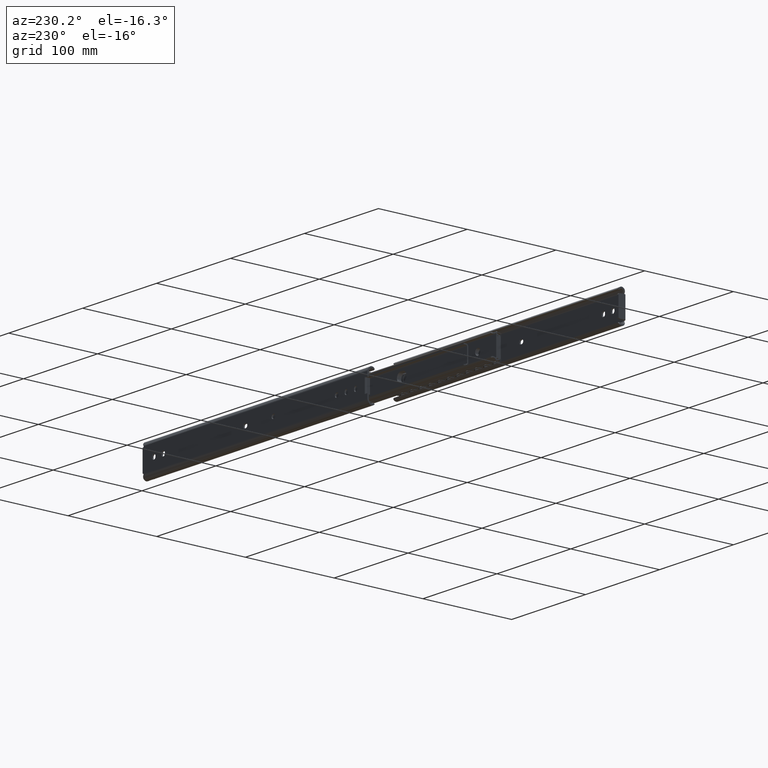
[diagram: clean part render]
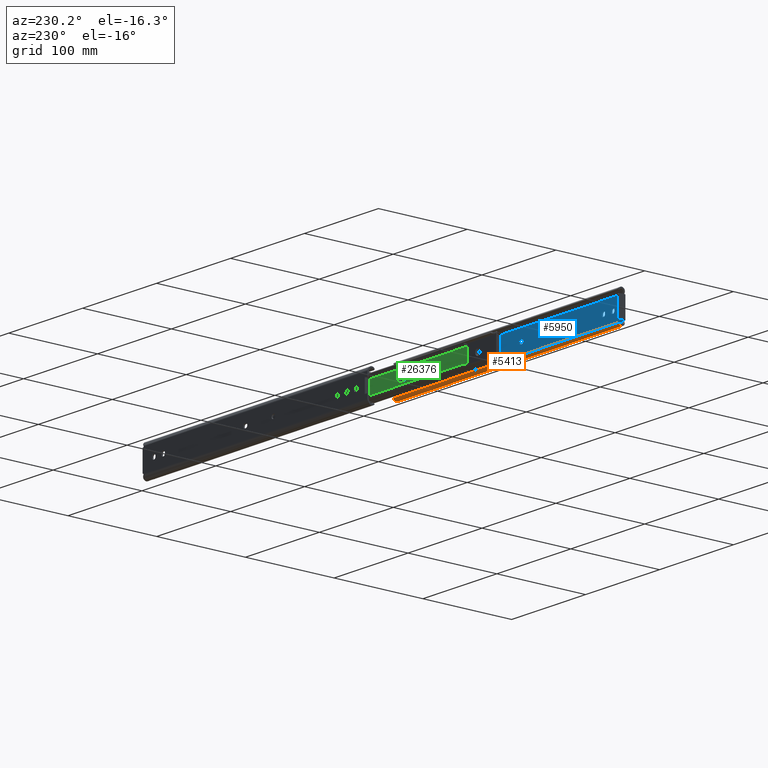
[diagram: same view with three faces highlighted in distinct colors, each labeled with its STEP entity id]
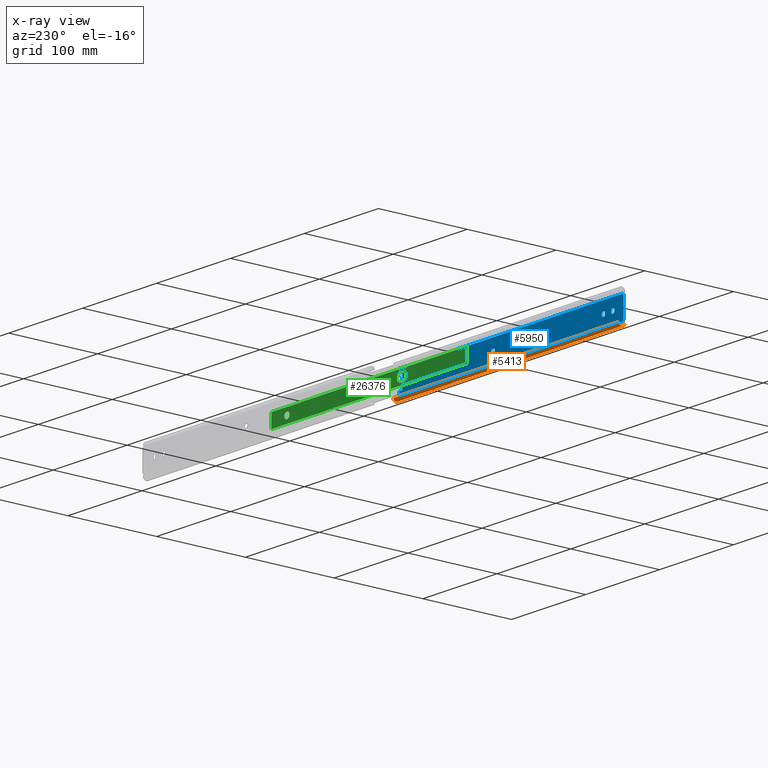
[diagram: x-ray of the same camera — body ghosted, the three highlighted faces saturated]
A machine part, auxiliary view with three faces highlighted in distinct colors.
The next image is the same camera in x-ray (body ghosted, the three faces saturated) — at least one of them is partly hidden behind the body in this view.
Their STEP definitions:

[orange] entity #5413 — the highlighted face is a freeform B-spline surface patch.
#3963=CARTESIAN_POINT('',(-630.399999999999980,-10.400000000000000,-15.138563000000000));
#3964=VERTEX_POINT('',#3963);
#3970=CARTESIAN_POINT('',(-632.0,-11.302638518556201,-16.501614328666950));
#3971=VERTEX_POINT('',#3970);
#3972=CARTESIAN_POINT('',(-632.0,-11.302638518556201,-16.501614328666950));
#3973=CARTESIAN_POINT('',(-632.000000000000230,-11.226194378668000,-16.426128224287918));
#3974=CARTESIAN_POINT('',(-631.990997167615550,-11.153967461245450,-16.348703276690522));
#3975=CARTESIAN_POINT('',(-631.963169050456940,-11.051633304871880,-16.230104814364751));
#3976=CARTESIAN_POINT('',(-631.951493122542390,-11.018525127647960,-16.190162409486451));
#3977=CARTESIAN_POINT('',(-631.923026400910430,-10.954286012375601,-16.109547295088930));
#3978=CARTESIAN_POINT('',(-631.906181411616220,-10.923146480550781,-16.068838561062211));
#3979=CARTESIAN_POINT('',(-631.848901241949190,-10.834730384179190,-15.948717804249480));
#3980=CARTESIAN_POINT('',(-631.801481476455480,-10.781641194929939,-15.870322937539759));
#3981=CARTESIAN_POINT('',(-631.715997520898440,-10.709667376940240,-15.756336050086171));
#3982=CARTESIAN_POINT('',(-631.684895276481830,-10.686836357171909,-15.718734330919769));
#3983=CARTESIAN_POINT('',(-631.618681467106280,-10.644274570757061,-15.646143124146970));
#3984=CARTESIAN_POINT('',(-631.583679256986670,-10.624571911342420,-15.611224698661211));
#3985=CARTESIAN_POINT('',(-631.473109611603380,-10.569668153573760,-15.510742340941650));
#3986=CARTESIAN_POINT('',(-631.391907230752390,-10.538598879034121,-15.449330065202069));
#3987=CARTESIAN_POINT('',(-631.214682063339180,-10.485921557493890,-15.339821609604050));
#3988=CARTESIAN_POINT('',(-631.121416271148520,-10.465089665039910,-15.293401310451010));
#3989=CARTESIAN_POINT('',(-630.974798504474050,-10.440343941462750,-15.236454519679439));
#3990=CARTESIAN_POINT('',(-630.924797603850950,-10.433193577023260,-15.219599340662899));
#3991=CARTESIAN_POINT('',(-630.822479874299350,-10.420955952402750,-15.190340587792001));
#3992=CARTESIAN_POINT('',(-630.770336387127830,-10.415901287041491,-15.178014943015469));
#3993=CARTESIAN_POINT('',(-630.613514909318270,-10.403920714509960,-15.148547015818920));
#3994=CARTESIAN_POINT('',(-630.507505410241720,-10.399999847407241,-15.138563060668821));
#3995=CARTESIAN_POINT('',(-630.399999999999980,-10.400000000000000,-15.138563000000000));
#3996=B_SPLINE_CURVE_WITH_KNOTS('',3,(#3972,#3973,#3974,#3975,#3976,#3977,#3978,#3979,#3980,#3981,#3982,#3983,#3984,#3985,#3986,#3987,#3988,#3989,#3990,#3991,#3992,#3993,#3994,#3995),.UNSPECIFIED.,.F.,.U.,(4,2,2,2,2,2,2,2,2,2,2,4),(0.0,0.124999999999944,0.187499999999904,0.249999999999865,0.374999999999787,0.437499999999748,0.499999999999708,0.624999999999721,0.749999999999733,0.812499999999800,0.874999999999866,1.0),.UNSPECIFIED.);
#3997=EDGE_CURVE('',#3971,#3964,#3996,.T.);
#4055=CARTESIAN_POINT('',(-327.0,-11.302638518556201,-16.501614328666950));
#4056=VERTEX_POINT('',#4055);
#4062=CARTESIAN_POINT('',(-328.600000000000020,-10.400000000000000,-15.138563000000000));
#4063=VERTEX_POINT('',#4062);
#4064=CARTESIAN_POINT('',(-328.600000000000020,-10.400000000000000,-15.138563000000000));
#4065=CARTESIAN_POINT('',(-328.492489346427190,-10.400000000000000,-15.138563000000000));
#4066=CARTESIAN_POINT('',(-328.386802597449500,-10.403921634057779,-15.148546628419540));
#4067=CARTESIAN_POINT('',(-328.230898281170820,-10.415794543107490,-15.177753697955920));
#4068=CARTESIAN_POINT('',(-328.179371178589180,-10.420764655172690,-15.189876962639850));
#4069=CARTESIAN_POINT('',(-328.077220936446510,-10.432923174149069,-15.218958860896990));
#4070=CARTESIAN_POINT('',(-328.026542471616610,-10.440137817474209,-15.235973860708571));
#4071=CARTESIAN_POINT('',(-327.879285968175220,-10.464931427625180,-15.293049567586900));
#4072=CARTESIAN_POINT('',(-327.786269993977730,-10.485727776225101,-15.339377883525030));
#4073=CARTESIAN_POINT('',(-327.654471023954610,-10.524770371689071,-15.420602472359590));
#4074=CARTESIAN_POINT('',(-327.611609034011510,-10.539195613233330,-15.449821699886179));
#4075=CARTESIAN_POINT('',(-327.529773989184380,-10.570629313260380,-15.511326141312860));
#4076=CARTESIAN_POINT('',(-327.490915097730520,-10.587569182211251,-15.543485633997850));
#4077=CARTESIAN_POINT('',(-327.380335841868880,-10.642366928866631,-15.643828389948540));
#4078=CARTESIAN_POINT('',(-327.314560355011910,-10.684161304594300,-15.715845930874400));
#4079=CARTESIAN_POINT('',(-327.228090507058990,-10.756635705755080,-15.830767068307020));
#4080=CARTESIAN_POINT('',(-327.201657300693510,-10.782170356377421,-15.869798196113280));
#4081=CARTESIAN_POINT('',(-327.153883464229520,-10.835615059043061,-15.948310848709189));
#4082=CARTESIAN_POINT('',(-327.111017979923020,-10.891588240765049,-16.027518397095630));
#4083=CARTESIAN_POINT('',(-327.077677865162400,-10.952901366475251,-16.107761194241821));
#4084=CARTESIAN_POINT('',(-327.049067677373390,-11.017063850306970,-16.188374994257320));
#4085=CARTESIAN_POINT('',(-327.037150048001480,-11.050613894492940,-16.228898804542411));
#4086=CARTESIAN_POINT('',(-327.009006493842890,-11.153651154112900,-16.348385027066239));
#4087=CARTESIAN_POINT('',(-327.0,-11.226162783748080,-16.426097025331060));
#4088=CARTESIAN_POINT('',(-327.0,-11.302638518556201,-16.501614328666950));
#4089=B_SPLINE_CURVE_WITH_KNOTS('',3,(#4064,#4065,#4066,#4067,#4068,#4069,#4070,#4071,#4072,#4073,#4074,#4075,#4076,#4077,#4078,#4079,#4080,#4081,#4082,#4083,#4084,#4085,#4086,#4087,#4088),.UNSPECIFIED.,.F.,.U.,(4,2,2,2,2,2,2,2,2,1,2,2,4),(0.0,0.124999999999974,0.187499999999928,0.249999999999883,0.374999999999854,0.437499999999839,0.499999999999824,0.624999999999840,0.687499999999867,0.749999999999894,0.812499999999921,0.874999999999948,1.0),.UNSPECIFIED.);
#4090=EDGE_CURVE('',#4063,#4056,#4089,.T.);
#4811=CARTESIAN_POINT('',(-632.0,-17.215175400253099,-16.147869559069100));
#4812=VERTEX_POINT('',#4811);
#4818=CARTESIAN_POINT('',(-631.997873348267940,-17.279057753178549,-16.065402533108699));
#4819=VERTEX_POINT('',#4818);
#4820=CARTESIAN_POINT('',(-632.0,-17.215175400253081,-16.147869559069090));
#4821=CARTESIAN_POINT('',(-632.0,-17.236756543974710,-16.120751444581629));
#4822=CARTESIAN_POINT('',(-631.999311394536220,-17.258051624621189,-16.093266270105200));
#4823=CARTESIAN_POINT('',(-631.997873348267940,-17.279057753178549,-16.065402533108699));
#4824=QUASI_UNIFORM_CURVE('',3,(#4820,#4821,#4822,#4823),.UNSPECIFIED.,.F.,.U.);
#4825=EDGE_CURVE('',#4812,#4819,#4824,.T.);
#5238=CARTESIAN_POINT('',(-632.0,-11.302638518556190,-16.501614328666960));
#5239=CARTESIAN_POINT('',(-632.0,-12.565766176203734,-17.748911850081434));
#5240=CARTESIAN_POINT('',(-632.0,-14.337771449614360,-17.642893467496911));
#5241=CARTESIAN_POINT('',(-632.0,-16.109776723024979,-17.536875084912385));
#5242=CARTESIAN_POINT('',(-632.0,-17.215175400253091,-16.147869559069090));
#5250=(BOUNDED_CURVE()B_SPLINE_CURVE(2,(#5238,#5239,#5240,#5241,#5242),.UNSPECIFIED.,.F.,.U.)B_SPLINE_CURVE_WITH_KNOTS((3,2,3),(0.0,0.500000000000000,1.0),.UNSPECIFIED.)CURVE()GEOMETRIC_REPRESENTATION_ITEM()RATIONAL_B_SPLINE_CURVE((1.0,0.913323076196492,1.0,0.913323076196492,1.0))REPRESENTATION_ITEM(''));
#5251=EDGE_CURVE('',#3971,#4812,#5250,.T.);
#5349=CARTESIAN_POINT('',(-327.0,-17.279057753178549,-16.065402533108699));
#5350=VERTEX_POINT('',#5349);
#5351=CARTESIAN_POINT('',(-327.0,-17.279057753178549,-16.065402533108699));
#5352=CARTESIAN_POINT('',(-631.997873348267940,-17.279057753178549,-16.065402533108699));
#5353=QUASI_UNIFORM_CURVE('',1,(#5351,#5352),.UNSPECIFIED.,.F.,.U.);
#5354=EDGE_CURVE('',#5350,#4819,#5353,.T.);
#5372=CARTESIAN_POINT('',(-319.374999999999890,-17.355711113712001,-15.960189876268430));
#5373=CARTESIAN_POINT('',(-639.815625000000180,-17.355711113712001,-15.960189876268430));
#5374=CARTESIAN_POINT('',(-319.374999999999890,-12.858507139814172,-22.349882710929190));
#5375=CARTESIAN_POINT('',(-639.815625000000300,-12.858507139814172,-22.349882710929190));
#5376=CARTESIAN_POINT('',(-319.374999999999890,-10.332527220146030,-14.955801053982810));
#5377=CARTESIAN_POINT('',(-639.815625000000180,-10.332527220146030,-14.955801053982810));
#5385=(BOUNDED_SURFACE()B_SPLINE_SURFACE(1,2,((#5372,#5374,#5376),(#5373,#5375,#5377)),.UNSPECIFIED.,.F.,.F.,.U.)B_SPLINE_SURFACE_WITH_KNOTS((2,2),(3,3),(0.0,320.440625000000180),(0.0,9.758852551128406),.UNSPECIFIED.)GEOMETRIC_REPRESENTATION_ITEM()RATIONAL_B_SPLINE_SURFACE(((1.0,0.453990499739547,1.0),(1.0,0.453990499739547,1.0)))REPRESENTATION_ITEM('')SURFACE());
#5386=CARTESIAN_POINT('',(-328.600000000000020,-10.400000000000000,-15.138563000000000));
#5387=CARTESIAN_POINT('',(-630.399999999999980,-10.400000000000000,-15.138563000000000));
#5388=QUASI_UNIFORM_CURVE('',1,(#5386,#5387),.UNSPECIFIED.,.F.,.U.);
#5389=EDGE_CURVE('',#4063,#3964,#5388,.T.);
#5390=ORIENTED_EDGE('',*,*,#5389,.F.);
#5391=ORIENTED_EDGE('',*,*,#4090,.T.);
#5392=CARTESIAN_POINT('',(-327.0,-11.302638518556190,-16.501614328666960));
#5393=CARTESIAN_POINT('',(-327.000000000000060,-12.588078055756213,-17.770944106200130));
#5394=CARTESIAN_POINT('',(-327.0,-14.389815792547820,-17.639437392491381));
#5395=CARTESIAN_POINT('',(-327.000000000000060,-16.191553529339423,-17.507930678782625));
#5396=CARTESIAN_POINT('',(-327.0,-17.279057753178542,-16.065402533108688));
#5404=(BOUNDED_CURVE()B_SPLINE_CURVE(2,(#5392,#5393,#5394,#5395,#5396),.UNSPECIFIED.,.F.,.U.)B_SPLINE_CURVE_WITH_KNOTS((3,2,3),(0.0,0.500000000000000,1.0),.UNSPECIFIED.)CURVE()GEOMETRIC_REPRESENTATION_ITEM()RATIONAL_B_SPLINE_CURVE((1.0,0.910635851455390,1.0,0.910635851455390,1.0))REPRESENTATION_ITEM(''));
#5405=EDGE_CURVE('',#4056,#5350,#5404,.T.);
#5406=ORIENTED_EDGE('',*,*,#5405,.T.);
#5407=ORIENTED_EDGE('',*,*,#5354,.T.);
#5408=ORIENTED_EDGE('',*,*,#4825,.F.);
#5409=ORIENTED_EDGE('',*,*,#5251,.F.);
#5410=ORIENTED_EDGE('',*,*,#3997,.T.);
#5411=EDGE_LOOP('',(#5390,#5391,#5406,#5407,#5408,#5409,#5410));
#5412=FACE_OUTER_BOUND('',#5411,.T.);
#5413=ADVANCED_FACE('',(#5412),#5385,.T.);

[blue] entity #5950 — the highlighted face is a freeform B-spline surface patch.
#2589=CARTESIAN_POINT('',(-368.700000000000100,-17.500000000000000,2.250000000000000));
#2590=VERTEX_POINT('',#2589);
#2596=CARTESIAN_POINT('',(-367.899999999999980,-17.500000000000000,2.250000000000000));
#2597=VERTEX_POINT('',#2596);
#2598=CARTESIAN_POINT('',(-367.899999999999980,-17.500000000000000,2.250000000000000));
#2599=CARTESIAN_POINT('',(-368.700000000000100,-17.500000000000000,2.250000000000000));
#2600=QUASI_UNIFORM_CURVE('',1,(#2598,#2599),.UNSPECIFIED.,.F.,.U.);
#2601=EDGE_CURVE('',#2597,#2590,#2600,.T.);
#2646=CARTESIAN_POINT('',(-368.700000000000100,-17.500000000000000,-2.250000000000000));
#2647=VERTEX_POINT('',#2646);
#2653=CARTESIAN_POINT('',(-368.700000000000100,-17.500000000000000,-2.249999999999999));
#2654=CARTESIAN_POINT('',(-370.950000000000050,-17.500000000000000,-2.249999999999999));
#2655=CARTESIAN_POINT('',(-370.949999999999990,-17.500000000000000,9.735621E-016));
#2656=CARTESIAN_POINT('',(-370.950000000000050,-17.500000000000000,2.250000000000000));
#2657=CARTESIAN_POINT('',(-368.700000000000100,-17.500000000000000,2.250000000000001));
#2665=(BOUNDED_CURVE()B_SPLINE_CURVE(2,(#2653,#2654,#2655,#2656,#2657),.UNSPECIFIED.,.F.,.U.)B_SPLINE_CURVE_WITH_KNOTS((3,2,3),(0.0,0.500000000000000,1.0),.UNSPECIFIED.)CURVE()GEOMETRIC_REPRESENTATION_ITEM()RATIONAL_B_SPLINE_CURVE((1.0,0.707106781186547,1.0,0.707106781186547,1.0))REPRESENTATION_ITEM(''));
#2666=EDGE_CURVE('',#2647,#2590,#2665,.T.);
#2684=CARTESIAN_POINT('',(-367.899999999999980,-17.500000000000000,-2.250000000000000));
#2685=VERTEX_POINT('',#2684);
#2691=CARTESIAN_POINT('',(-368.700000000000100,-17.500000000000000,-2.250000000000000));
#2692=CARTESIAN_POINT('',(-367.899999999999980,-17.500000000000000,-2.250000000000000));
#2693=QUASI_UNIFORM_CURVE('',1,(#2691,#2692),.UNSPECIFIED.,.F.,.U.);
#2694=EDGE_CURVE('',#2647,#2685,#2693,.T.);
#2734=CARTESIAN_POINT('',(-367.899999999999980,-17.500000000000000,2.250000000000001));
#2735=CARTESIAN_POINT('',(-365.650000000000090,-17.500000000000000,2.250000000000000));
#2736=CARTESIAN_POINT('',(-365.649999999999980,-17.500000000000000,9.735621E-016));
#2737=CARTESIAN_POINT('',(-365.650000000000090,-17.500000000000000,-2.249999999999999));
#2738=CARTESIAN_POINT('',(-367.899999999999980,-17.500000000000000,-2.249999999999999));
#2746=(BOUNDED_CURVE()B_SPLINE_CURVE(2,(#2734,#2735,#2736,#2737,#2738),.UNSPECIFIED.,.F.,.U.)B_SPLINE_CURVE_WITH_KNOTS((3,2,3),(0.0,0.500000000000000,1.0),.UNSPECIFIED.)CURVE()GEOMETRIC_REPRESENTATION_ITEM()RATIONAL_B_SPLINE_CURVE((1.0,0.707106781186547,1.0,0.707106781186547,1.0))REPRESENTATION_ITEM(''));
#2747=EDGE_CURVE('',#2597,#2685,#2746,.T.);
#2790=CARTESIAN_POINT('',(-353.350000000000020,-17.500000000000000,-0.400000000000204));
#2791=VERTEX_POINT('',#2790);
#2797=CARTESIAN_POINT('',(-357.850000000000020,-17.500000000000000,-0.400000000000204));
#2798=VERTEX_POINT('',#2797);
#2799=CARTESIAN_POINT('',(-353.350000000000080,-17.500000000000000,-0.400000000000204));
#2800=CARTESIAN_POINT('',(-353.350000000000080,-17.500000000000000,-2.650000000000204));
#2801=CARTESIAN_POINT('',(-355.600000000000020,-17.500000000000000,-2.650000000000203));
#2802=CARTESIAN_POINT('',(-357.849999999999970,-17.500000000000000,-2.650000000000204));
#2803=CARTESIAN_POINT('',(-357.850000000000020,-17.500000000000000,-0.400000000000204));
#2811=(BOUNDED_CURVE()B_SPLINE_CURVE(2,(#2799,#2800,#2801,#2802,#2803),.UNSPECIFIED.,.F.,.U.)B_SPLINE_CURVE_WITH_KNOTS((3,2,3),(0.0,0.500000000000000,1.0),.UNSPECIFIED.)CURVE()GEOMETRIC_REPRESENTATION_ITEM()RATIONAL_B_SPLINE_CURVE((1.0,0.707106781186547,1.0,0.707106781186547,1.0))REPRESENTATION_ITEM(''));
#2812=EDGE_CURVE('',#2791,#2798,#2811,.T.);
#2835=CARTESIAN_POINT('',(-357.850000000000020,-17.500000000000000,0.399999999999808));
#2836=VERTEX_POINT('',#2835);
#2837=CARTESIAN_POINT('',(-357.850000000000020,-17.500000000000000,0.399999999999808));
#2838=CARTESIAN_POINT('',(-357.850000000000020,-17.500000000000000,-0.400000000000204));
#2839=QUASI_UNIFORM_CURVE('',1,(#2837,#2838),.UNSPECIFIED.,.F.,.U.);
#2840=EDGE_CURVE('',#2836,#2798,#2839,.T.);
#2886=CARTESIAN_POINT('',(-353.350000000000020,-17.500000000000000,0.399999999999808));
#2887=VERTEX_POINT('',#2886);
#2888=CARTESIAN_POINT('',(-357.850000000000020,-17.500000000000000,0.399999999999808));
#2889=CARTESIAN_POINT('',(-357.849999999999970,-17.500000000000000,2.649999999999808));
#2890=CARTESIAN_POINT('',(-355.600000000000020,-17.500000000000000,2.649999999999808));
#2891=CARTESIAN_POINT('',(-353.350000000000080,-17.500000000000000,2.649999999999808));
#2892=CARTESIAN_POINT('',(-353.350000000000080,-17.500000000000000,0.399999999999808));
#2900=(BOUNDED_CURVE()B_SPLINE_CURVE(2,(#2888,#2889,#2890,#2891,#2892),.UNSPECIFIED.,.F.,.U.)B_SPLINE_CURVE_WITH_KNOTS((3,2,3),(0.0,0.500000000000000,1.0),.UNSPECIFIED.)CURVE()GEOMETRIC_REPRESENTATION_ITEM()RATIONAL_B_SPLINE_CURVE((1.0,0.707106781186547,1.0,0.707106781186547,1.0))REPRESENTATION_ITEM(''));
#2901=EDGE_CURVE('',#2836,#2887,#2900,.T.);
#2922=CARTESIAN_POINT('',(-353.350000000000020,-17.500000000000000,-0.400000000000204));
#2923=CARTESIAN_POINT('',(-353.350000000000020,-17.500000000000000,0.399999999999808));
#2924=QUASI_UNIFORM_CURVE('',1,(#2922,#2923),.UNSPECIFIED.,.F.,.U.);
#2925=EDGE_CURVE('',#2791,#2887,#2924,.T.);
#2945=CARTESIAN_POINT('',(-340.649999999999980,-17.500000000000000,0.400000000000008));
#2946=VERTEX_POINT('',#2945);
#2952=CARTESIAN_POINT('',(-340.649999999999980,-17.500000000000000,-0.400000000000090));
#2953=VERTEX_POINT('',#2952);
#2954=CARTESIAN_POINT('',(-340.649999999999980,-17.500000000000000,0.400000000000008));
#2955=CARTESIAN_POINT('',(-340.649999999999980,-17.500000000000000,-0.400000000000090));
#2956=QUASI_UNIFORM_CURVE('',1,(#2954,#2955),.UNSPECIFIED.,.F.,.U.);
#2957=EDGE_CURVE('',#2946,#2953,#2956,.T.);
#3002=CARTESIAN_POINT('',(-345.149999999999980,-17.500000000000000,0.400000000000007));
#3003=VERTEX_POINT('',#3002);
#3009=CARTESIAN_POINT('',(-345.149999999999980,-17.500000000000000,0.400000000000007));
#3010=CARTESIAN_POINT('',(-345.149999999999920,-17.500000000000000,2.650000000000008));
#3011=CARTESIAN_POINT('',(-342.899999999999980,-17.500000000000000,2.650000000000007));
#3012=CARTESIAN_POINT('',(-340.650000000000030,-17.500000000000000,2.650000000000008));
#3013=CARTESIAN_POINT('',(-340.649999999999980,-17.500000000000000,0.400000000000007));
#3021=(BOUNDED_CURVE()B_SPLINE_CURVE(2,(#3009,#3010,#3011,#3012,#3013),.UNSPECIFIED.,.F.,.U.)B_SPLINE_CURVE_WITH_KNOTS((3,2,3),(0.0,0.500000000000000,1.0),.UNSPECIFIED.)CURVE()GEOMETRIC_REPRESENTATION_ITEM()RATIONAL_B_SPLINE_CURVE((1.0,0.707106781186547,1.0,0.707106781186547,1.0))REPRESENTATION_ITEM(''));
#3022=EDGE_CURVE('',#3003,#2946,#3021,.T.);
#3040=CARTESIAN_POINT('',(-345.149999999999980,-17.500000000000000,-0.400000000000090));
#3041=VERTEX_POINT('',#3040);
#3047=CARTESIAN_POINT('',(-345.149999999999980,-17.500000000000000,-0.400000000000090));
#3048=CARTESIAN_POINT('',(-345.149999999999980,-17.500000000000000,0.400000000000007));
#3049=QUASI_UNIFORM_CURVE('',1,(#3047,#3048),.UNSPECIFIED.,.F.,.U.);
#3050=EDGE_CURVE('',#3041,#3003,#3049,.T.);
#3090=CARTESIAN_POINT('',(-340.649999999999980,-17.500000000000000,-0.400000000000090));
#3091=CARTESIAN_POINT('',(-340.650000000000030,-17.500000000000000,-2.650000000000090));
#3092=CARTESIAN_POINT('',(-342.899999999999980,-17.500000000000000,-2.650000000000090));
#3093=CARTESIAN_POINT('',(-345.149999999999920,-17.500000000000000,-2.650000000000090));
#3094=CARTESIAN_POINT('',(-345.149999999999980,-17.500000000000000,-0.400000000000090));
#3102=(BOUNDED_CURVE()B_SPLINE_CURVE(2,(#3090,#3091,#3092,#3093,#3094),.UNSPECIFIED.,.F.,.U.)B_SPLINE_CURVE_WITH_KNOTS((3,2,3),(0.0,0.500000000000000,1.0),.UNSPECIFIED.)CURVE()GEOMETRIC_REPRESENTATION_ITEM()RATIONAL_B_SPLINE_CURVE((1.0,0.707106781186547,1.0,0.707106781186547,1.0))REPRESENTATION_ITEM(''));
#3103=EDGE_CURVE('',#2953,#3041,#3102,.T.);
#3114=CARTESIAN_POINT('',(-454.399999999999980,-17.500000000000000,-2.250000000000200));
#3115=VERTEX_POINT('',#3114);
#3130=CARTESIAN_POINT('',(-453.600000000000020,-17.500000000000000,-2.250000000000195));
#3131=VERTEX_POINT('',#3130);
#3137=CARTESIAN_POINT('',(-454.399999999999980,-17.500000000000000,-2.250000000000200));
#3138=CARTESIAN_POINT('',(-453.600000000000020,-17.500000000000000,-2.250000000000195));
#3139=QUASI_UNIFORM_CURVE('',1,(#3137,#3138),.UNSPECIFIED.,.F.,.U.);
#3140=EDGE_CURVE('',#3115,#3131,#3139,.T.);
#3181=CARTESIAN_POINT('',(-453.600000000000020,-17.500000000000000,2.250000000000000));
#3182=VERTEX_POINT('',#3181);
#3188=CARTESIAN_POINT('',(-453.600000000000020,-17.500000000000000,-2.249999999999999));
#3189=CARTESIAN_POINT('',(-451.350000000000020,-17.500000000000000,-2.249999999999999));
#3190=CARTESIAN_POINT('',(-451.350000000000020,-17.500000000000000,9.735621E-016));
#3191=CARTESIAN_POINT('',(-451.350000000000020,-17.500000000000000,2.250000000000000));
#3192=CARTESIAN_POINT('',(-453.600000000000020,-17.500000000000000,2.250000000000001));
#3200=(BOUNDED_CURVE()B_SPLINE_CURVE(2,(#3188,#3189,#3190,#3191,#3192),.UNSPECIFIED.,.F.,.U.)B_SPLINE_CURVE_WITH_KNOTS((3,2,3),(0.0,0.500000000000000,1.0),.UNSPECIFIED.)CURVE()GEOMETRIC_REPRESENTATION_ITEM()RATIONAL_B_SPLINE_CURVE((1.0,0.707106781186547,1.0,0.707106781186547,1.0))REPRESENTATION_ITEM(''));
#3201=EDGE_CURVE('',#3131,#3182,#3200,.T.);
#3219=CARTESIAN_POINT('',(-454.399999999999980,-17.500000000000000,2.250000000000000));
#3220=VERTEX_POINT('',#3219);
#3226=CARTESIAN_POINT('',(-453.600000000000020,-17.500000000000000,2.250000000000000));
#3227=CARTESIAN_POINT('',(-454.399999999999980,-17.500000000000000,2.250000000000000));
#3228=QUASI_UNIFORM_CURVE('',1,(#3226,#3227),.UNSPECIFIED.,.F.,.U.);
#3229=EDGE_CURVE('',#3182,#3220,#3228,.T.);
#3269=CARTESIAN_POINT('',(-454.399999999999980,-17.500000000000000,2.250000000000001));
#3270=CARTESIAN_POINT('',(-456.650000000000030,-17.500000000000000,2.250000000000000));
#3271=CARTESIAN_POINT('',(-456.649999999999980,-17.500000000000000,9.735621E-016));
#3272=CARTESIAN_POINT('',(-456.650000000000030,-17.500000000000000,-2.249999999999999));
#3273=CARTESIAN_POINT('',(-454.399999999999980,-17.500000000000000,-2.249999999999999));
#3281=(BOUNDED_CURVE()B_SPLINE_CURVE(2,(#3269,#3270,#3271,#3272,#3273),.UNSPECIFIED.,.F.,.U.)B_SPLINE_CURVE_WITH_KNOTS((3,2,3),(0.0,0.500000000000000,1.0),.UNSPECIFIED.)CURVE()GEOMETRIC_REPRESENTATION_ITEM()RATIONAL_B_SPLINE_CURVE((1.0,0.707106781186547,1.0,0.707106781186547,1.0))REPRESENTATION_ITEM(''));
#3282=EDGE_CURVE('',#3220,#3115,#3281,.T.);
#3292=CARTESIAN_POINT('',(-491.700000000000100,-17.500000000000000,2.250000000000000));
#3293=VERTEX_POINT('',#3292);
#3308=CARTESIAN_POINT('',(-492.500000000000000,-17.500000000000000,2.250000000000000));
#3309=VERTEX_POINT('',#3308);
#3315=CARTESIAN_POINT('',(-491.700000000000100,-17.500000000000000,2.250000000000000));
#3316=CARTESIAN_POINT('',(-492.500000000000000,-17.500000000000000,2.250000000000000));
#3317=QUASI_UNIFORM_CURVE('',1,(#3315,#3316),.UNSPECIFIED.,.F.,.U.);
#3318=EDGE_CURVE('',#3293,#3309,#3317,.T.);
#3359=CARTESIAN_POINT('',(-492.500000000000000,-17.500000000000000,-2.250000000000200));
#3360=VERTEX_POINT('',#3359);
#3366=CARTESIAN_POINT('',(-492.500000000000000,-17.500000000000000,2.250000000000001));
#3367=CARTESIAN_POINT('',(-494.749999999999890,-17.500000000000000,2.250000000000000));
#3368=CARTESIAN_POINT('',(-494.749999999999890,-17.500000000000000,9.735621E-016));
#3369=CARTESIAN_POINT('',(-494.749999999999890,-17.500000000000000,-2.249999999999999));
#3370=CARTESIAN_POINT('',(-492.500000000000000,-17.500000000000000,-2.249999999999999));
#3378=(BOUNDED_CURVE()B_SPLINE_CURVE(2,(#3366,#3367,#3368,#3369,#3370),.UNSPECIFIED.,.F.,.U.)B_SPLINE_CURVE_WITH_KNOTS((3,2,3),(0.0,0.500000000000000,1.0),.UNSPECIFIED.)CURVE()GEOMETRIC_REPRESENTATION_ITEM()RATIONAL_B_SPLINE_CURVE((1.0,0.707106781186547,1.0,0.707106781186547,1.0))REPRESENTATION_ITEM(''));
#3379=EDGE_CURVE('',#3309,#3360,#3378,.T.);
#3397=CARTESIAN_POINT('',(-491.700000000000100,-17.500000000000000,-2.250000000000200));
#3398=VERTEX_POINT('',#3397);
#3404=CARTESIAN_POINT('',(-492.500000000000000,-17.500000000000000,-2.250000000000200));
#3405=CARTESIAN_POINT('',(-491.700000000000100,-17.500000000000000,-2.250000000000200));
#3406=QUASI_UNIFORM_CURVE('',1,(#3404,#3405),.UNSPECIFIED.,.F.,.U.);
#3407=EDGE_CURVE('',#3360,#3398,#3406,.T.);
#3447=CARTESIAN_POINT('',(-491.700000000000100,-17.500000000000000,-2.249999999999999));
#3448=CARTESIAN_POINT('',(-489.450000000000050,-17.500000000000000,-2.249999999999999));
#3449=CARTESIAN_POINT('',(-489.450000000000100,-17.500000000000000,9.735621E-016));
#3450=CARTESIAN_POINT('',(-489.450000000000050,-17.500000000000000,2.250000000000000));
#3451=CARTESIAN_POINT('',(-491.700000000000100,-17.500000000000000,2.250000000000001));
#3459=(BOUNDED_CURVE()B_SPLINE_CURVE(2,(#3447,#3448,#3449,#3450,#3451),.UNSPECIFIED.,.F.,.U.)B_SPLINE_CURVE_WITH_KNOTS((3,2,3),(0.0,0.500000000000000,1.0),.UNSPECIFIED.)CURVE()GEOMETRIC_REPRESENTATION_ITEM()RATIONAL_B_SPLINE_CURVE((1.0,0.707106781186547,1.0,0.707106781186547,1.0))REPRESENTATION_ITEM(''));
#3460=EDGE_CURVE('',#3398,#3293,#3459,.T.);
#3483=CARTESIAN_POINT('',(-613.649999999999980,-17.500000000000000,0.400000000000007));
#3484=VERTEX_POINT('',#3483);
#3509=CARTESIAN_POINT('',(-618.149999999999980,-17.500000000000000,0.400000000000007));
#3510=VERTEX_POINT('',#3509);
#3516=CARTESIAN_POINT('',(-613.649999999999980,-17.500000000000000,0.400000000000007));
#3517=CARTESIAN_POINT('',(-613.650000000000090,-17.500000000000000,2.650000000000008));
#3518=CARTESIAN_POINT('',(-615.899999999999980,-17.500000000000000,2.650000000000007));
#3519=CARTESIAN_POINT('',(-618.149999999999980,-17.500000000000000,2.650000000000008));
#3520=CARTESIAN_POINT('',(-618.149999999999980,-17.500000000000000,0.400000000000007));
#3528=(BOUNDED_CURVE()B_SPLINE_CURVE(2,(#3516,#3517,#3518,#3519,#3520),.UNSPECIFIED.,.F.,.U.)B_SPLINE_CURVE_WITH_KNOTS((3,2,3),(0.0,0.500000000000000,1.0),.UNSPECIFIED.)CURVE()GEOMETRIC_REPRESENTATION_ITEM()RATIONAL_B_SPLINE_CURVE((1.0,0.707106781186547,1.0,0.707106781186547,1.0))REPRESENTATION_ITEM(''));
#3529=EDGE_CURVE('',#3484,#3510,#3528,.T.);
#3539=CARTESIAN_POINT('',(-613.649999999999980,-17.500000000000000,-0.400000000000090));
#3540=VERTEX_POINT('',#3539);
#3541=CARTESIAN_POINT('',(-613.649999999999980,-17.500000000000000,0.400000000000007));
#3542=CARTESIAN_POINT('',(-613.649999999999980,-17.500000000000000,-0.400000000000090));
#3543=QUASI_UNIFORM_CURVE('',1,(#3541,#3542),.UNSPECIFIED.,.F.,.U.);
#3544=EDGE_CURVE('',#3484,#3540,#3543,.T.);
#3580=CARTESIAN_POINT('',(-618.149999999999980,-17.500000000000000,-0.400000000000090));
#3581=VERTEX_POINT('',#3580);
#3605=CARTESIAN_POINT('',(-618.149999999999980,-17.500000000000000,-0.400000000000090));
#3606=CARTESIAN_POINT('',(-618.149999999999980,-17.500000000000000,-2.650000000000090));
#3607=CARTESIAN_POINT('',(-615.899999999999980,-17.500000000000000,-2.650000000000090));
#3608=CARTESIAN_POINT('',(-613.650000000000090,-17.500000000000000,-2.650000000000090));
#3609=CARTESIAN_POINT('',(-613.649999999999980,-17.500000000000000,-0.400000000000090));
#3617=(BOUNDED_CURVE()B_SPLINE_CURVE(2,(#3605,#3606,#3607,#3608,#3609),.UNSPECIFIED.,.F.,.U.)B_SPLINE_CURVE_WITH_KNOTS((3,2,3),(0.0,0.500000000000000,1.0),.UNSPECIFIED.)CURVE()GEOMETRIC_REPRESENTATION_ITEM()RATIONAL_B_SPLINE_CURVE((1.0,0.707106781186547,1.0,0.707106781186547,1.0))REPRESENTATION_ITEM(''));
#3618=EDGE_CURVE('',#3581,#3540,#3617,.T.);
#3628=CARTESIAN_POINT('',(-618.149999999999980,-17.500000000000000,-0.400000000000090));
#3629=CARTESIAN_POINT('',(-618.149999999999980,-17.500000000000000,0.400000000000007));
#3630=QUASI_UNIFORM_CURVE('',1,(#3628,#3629),.UNSPECIFIED.,.F.,.U.);
#3631=EDGE_CURVE('',#3581,#3510,#3630,.T.);
#3648=CARTESIAN_POINT('',(-605.450000000000050,-17.500000000000000,0.400000000000007));
#3649=VERTEX_POINT('',#3648);
#3664=CARTESIAN_POINT('',(-605.450000000000050,-17.500000000000000,-0.400000000000091));
#3665=VERTEX_POINT('',#3664);
#3671=CARTESIAN_POINT('',(-605.450000000000050,-17.500000000000000,0.400000000000007));
#3672=CARTESIAN_POINT('',(-605.450000000000050,-17.500000000000000,-0.400000000000091));
#3673=QUASI_UNIFORM_CURVE('',1,(#3671,#3672),.UNSPECIFIED.,.F.,.U.);
#3674=EDGE_CURVE('',#3649,#3665,#3673,.T.);
#3715=CARTESIAN_POINT('',(-600.949999999999930,-17.500000000000000,-0.400000000000090));
#3716=VERTEX_POINT('',#3715);
#3722=CARTESIAN_POINT('',(-605.449999999999930,-17.500000000000000,-0.400000000000090));
#3723=CARTESIAN_POINT('',(-605.449999999999930,-17.500000000000000,-2.650000000000090));
#3724=CARTESIAN_POINT('',(-603.199999999999930,-17.500000000000000,-2.650000000000090));
#3725=CARTESIAN_POINT('',(-600.950000000000050,-17.500000000000000,-2.650000000000090));
#3726=CARTESIAN_POINT('',(-600.949999999999930,-17.500000000000000,-0.400000000000090));
#3734=(BOUNDED_CURVE()B_SPLINE_CURVE(2,(#3722,#3723,#3724,#3725,#3726),.UNSPECIFIED.,.F.,.U.)B_SPLINE_CURVE_WITH_KNOTS((3,2,3),(0.0,0.500000000000000,1.0),.UNSPECIFIED.)CURVE()GEOMETRIC_REPRESENTATION_ITEM()RATIONAL_B_SPLINE_CURVE((1.0,0.707106781186547,1.0,0.707106781186547,1.0))REPRESENTATION_ITEM(''));
#3735=EDGE_CURVE('',#3665,#3716,#3734,.T.);
#3753=CARTESIAN_POINT('',(-600.949999999999930,-17.500000000000000,0.400000000000007));
#3754=VERTEX_POINT('',#3753);
#3760=CARTESIAN_POINT('',(-600.949999999999930,-17.500000000000000,-0.400000000000090));
#3761=CARTESIAN_POINT('',(-600.949999999999930,-17.500000000000000,0.400000000000007));
#3762=QUASI_UNIFORM_CURVE('',1,(#3760,#3761),.UNSPECIFIED.,.F.,.U.);
#3763=EDGE_CURVE('',#3716,#3754,#3762,.T.);
#3803=CARTESIAN_POINT('',(-600.949999999999930,-17.500000000000000,0.400000000000007));
#3804=CARTESIAN_POINT('',(-600.950000000000050,-17.500000000000000,2.650000000000008));
#3805=CARTESIAN_POINT('',(-603.199999999999930,-17.500000000000000,2.650000000000007));
#3806=CARTESIAN_POINT('',(-605.449999999999930,-17.500000000000000,2.650000000000008));
#3807=CARTESIAN_POINT('',(-605.449999999999930,-17.500000000000000,0.400000000000007));
#3815=(BOUNDED_CURVE()B_SPLINE_CURVE(2,(#3803,#3804,#3805,#3806,#3807),.UNSPECIFIED.,.F.,.U.)B_SPLINE_CURVE_WITH_KNOTS((3,2,3),(0.0,0.500000000000000,1.0),.UNSPECIFIED.)CURVE()GEOMETRIC_REPRESENTATION_ITEM()RATIONAL_B_SPLINE_CURVE((1.0,0.707106781186547,1.0,0.707106781186547,1.0))REPRESENTATION_ITEM(''));
#3816=EDGE_CURVE('',#3754,#3649,#3815,.T.);
#4270=CARTESIAN_POINT('',(-329.500000000000000,-17.500000000000000,-7.500000000000200));
#4271=VERTEX_POINT('',#4270);
#4287=CARTESIAN_POINT('',(-329.500000000000000,-17.500000000000000,7.500000000000000));
#4288=VERTEX_POINT('',#4287);
#4324=CARTESIAN_POINT('',(-331.100000000000020,-17.500000000000000,-7.500000000000200));
#4325=VERTEX_POINT('',#4324);
#4331=CARTESIAN_POINT('',(-331.100000000000020,-17.500000000000000,7.500000000000000));
#4332=VERTEX_POINT('',#4331);
#4333=CARTESIAN_POINT('',(-331.100000000000020,-17.500000000000000,-7.500000000000200));
#4334=CARTESIAN_POINT('',(-331.100000000000020,-17.500000000000000,7.500000000000000));
#4335=QUASI_UNIFORM_CURVE('',1,(#4333,#4334),.UNSPECIFIED.,.F.,.U.);
#4336=EDGE_CURVE('',#4325,#4332,#4335,.T.);
#4358=CARTESIAN_POINT('',(-331.100000000000020,-17.500000000000000,-7.500000000000200));
#4359=CARTESIAN_POINT('',(-329.500000000000000,-17.500000000000000,-7.500000000000200));
#4360=QUASI_UNIFORM_CURVE('',1,(#4358,#4359),.UNSPECIFIED.,.F.,.U.);
#4361=EDGE_CURVE('',#4325,#4271,#4360,.T.);
#4406=CARTESIAN_POINT('',(-329.500000000000000,-17.500000000000000,7.500000000000000));
#4407=CARTESIAN_POINT('',(-331.100000000000020,-17.500000000000000,7.500000000000000));
#4408=QUASI_UNIFORM_CURVE('',1,(#4406,#4407),.UNSPECIFIED.,.F.,.U.);
#4409=EDGE_CURVE('',#4288,#4332,#4408,.T.);
#4434=CARTESIAN_POINT('',(-327.0,-17.500000000000000,7.500000000000000));
#4435=VERTEX_POINT('',#4434);
#4436=CARTESIAN_POINT('',(-329.500000000000000,-17.500000000000000,7.500000000000000));
#4437=CARTESIAN_POINT('',(-327.0,-17.500000000000000,7.500000000000000));
#4438=QUASI_UNIFORM_CURVE('',1,(#4436,#4437),.UNSPECIFIED.,.F.,.U.);
#4439=EDGE_CURVE('',#4288,#4435,#4438,.T.);
#4473=CARTESIAN_POINT('',(-327.0,-17.500000000000000,-7.500000000000200));
#4474=VERTEX_POINT('',#4473);
#4480=CARTESIAN_POINT('',(-327.0,-17.500000000000000,-7.500000000000200));
#4481=CARTESIAN_POINT('',(-329.500000000000000,-17.500000000000000,-7.500000000000200));
#4482=QUASI_UNIFORM_CURVE('',1,(#4480,#4481),.UNSPECIFIED.,.F.,.U.);
#4483=EDGE_CURVE('',#4474,#4271,#4482,.T.);
#4494=CARTESIAN_POINT('',(-630.399999999999980,-17.500000000000000,-11.500000000000000));
#4495=VERTEX_POINT('',#4494);
#4496=CARTESIAN_POINT('',(-630.399999999999980,-17.500000000000000,11.500000000000000));
#4497=VERTEX_POINT('',#4496);
#4498=CARTESIAN_POINT('',(-630.399999999999980,-17.500000000000000,-11.500000000000000));
#4499=CARTESIAN_POINT('',(-630.399999999999980,-17.500000000000000,11.500000000000000));
#4500=QUASI_UNIFORM_CURVE('',1,(#4498,#4499),.UNSPECIFIED.,.F.,.U.);
#4501=EDGE_CURVE('',#4495,#4497,#4500,.T.);
#4696=CARTESIAN_POINT('',(-629.639865253740030,-17.499999999999751,-12.578916000000000));
#4697=VERTEX_POINT('',#4696);
#4741=CARTESIAN_POINT('',(-629.639865253739800,-17.500000000000000,-12.578916000000079));
#4742=CARTESIAN_POINT('',(-629.498933981360550,-17.500000000000000,-12.184613891433479));
#4743=CARTESIAN_POINT('',(-629.740101415456820,-17.500000000000000,-11.842306945716739));
#4744=CARTESIAN_POINT('',(-629.981268849553320,-17.500000000000000,-11.499999999999998));
#4745=CARTESIAN_POINT('',(-630.399999999999980,-17.500000000000000,-11.500000000000000));
#4753=(BOUNDED_CURVE()B_SPLINE_CURVE(2,(#4741,#4742,#4743,#4744,#4745),.UNSPECIFIED.,.F.,.U.)B_SPLINE_CURVE_WITH_KNOTS((3,2,3),(0.0,0.500000000000000,1.0),.UNSPECIFIED.)CURVE()GEOMETRIC_REPRESENTATION_ITEM()RATIONAL_B_SPLINE_CURVE((1.0,0.887679040060784,1.0,0.887679040060784,1.0))REPRESENTATION_ITEM(''));
#4754=EDGE_CURVE('',#4697,#4495,#4753,.T.);
#5166=CARTESIAN_POINT('',(-629.639865253740030,-17.500000000000000,12.578915999999900));
#5167=VERTEX_POINT('',#5166);
#5175=CARTESIAN_POINT('',(-630.399999999999980,-17.500000000000000,11.500000000000000));
#5176=CARTESIAN_POINT('',(-629.981268849553200,-17.500000000000007,11.500000000000004));
#5177=CARTESIAN_POINT('',(-629.740101415456930,-17.500000000000000,11.842306945716700));
#5178=CARTESIAN_POINT('',(-629.498933981360550,-17.500000000000007,12.184613891433406));
#5179=CARTESIAN_POINT('',(-629.639865253739800,-17.500000000000000,12.578915999999991));
#5187=(BOUNDED_CURVE()B_SPLINE_CURVE(2,(#5175,#5176,#5177,#5178,#5179),.UNSPECIFIED.,.F.,.U.)B_SPLINE_CURVE_WITH_KNOTS((3,2,3),(0.0,0.500000000000000,1.0),.UNSPECIFIED.)CURVE()GEOMETRIC_REPRESENTATION_ITEM()RATIONAL_B_SPLINE_CURVE((1.0,0.887679040060798,1.0,0.887679040060798,1.0))REPRESENTATION_ITEM(''));
#5188=EDGE_CURVE('',#4497,#5167,#5187,.T.);
#5660=CARTESIAN_POINT('',(-327.0,-17.499999999999751,12.578915999999900));
#5661=VERTEX_POINT('',#5660);
#5675=CARTESIAN_POINT('',(-327.0,-17.499999999999751,12.578915999999900));
#5676=CARTESIAN_POINT('',(-629.639865253740030,-17.500000000000000,12.578915999999900));
#5677=QUASI_UNIFORM_CURVE('',1,(#5675,#5676),.UNSPECIFIED.,.F.,.U.);
#5678=EDGE_CURVE('',#5661,#5167,#5677,.T.);
#5752=CARTESIAN_POINT('',(-327.0,-17.500000000000000,-12.578916000000000));
#5753=VERTEX_POINT('',#5752);
#5754=CARTESIAN_POINT('',(-327.0,-17.500000000000000,-12.578916000000000));
#5755=CARTESIAN_POINT('',(-629.639865253740030,-17.499999999999751,-12.578916000000000));
#5756=QUASI_UNIFORM_CURVE('',1,(#5754,#5755),.UNSPECIFIED.,.F.,.U.);
#5757=EDGE_CURVE('',#5753,#4697,#5756,.T.);
#5793=CARTESIAN_POINT('',(-327.0,-17.499999999999751,12.578915999999900));
#5794=CARTESIAN_POINT('',(-327.0,-17.500000000000000,7.500000000000000));
#5795=QUASI_UNIFORM_CURVE('',1,(#5793,#5794),.UNSPECIFIED.,.F.,.U.);
#5796=EDGE_CURVE('',#5661,#4435,#5795,.T.);
#5813=CARTESIAN_POINT('',(-327.0,-17.500000000000000,-7.500000000000200));
#5814=CARTESIAN_POINT('',(-327.0,-17.500000000000000,-12.578916000000000));
#5815=QUASI_UNIFORM_CURVE('',1,(#5813,#5814),.UNSPECIFIED.,.F.,.U.);
#5816=EDGE_CURVE('',#4474,#5753,#5815,.T.);
#5889=CARTESIAN_POINT('',(-311.845169504090220,-17.500000000000000,13.835549333593960));
#5890=CARTESIAN_POINT('',(-311.845169504090220,-17.500000000000000,-13.835548433879881));
#5891=CARTESIAN_POINT('',(-645.554860334591240,-17.500000000000000,13.835549333593960));
#5892=CARTESIAN_POINT('',(-645.554860334591240,-17.500000000000000,-13.835548433879881));
#5893=B_SPLINE_SURFACE_WITH_KNOTS('',1,1,((#5889,#5891),(#5890,#5892)),.UNSPECIFIED.,.F.,.F.,.U.,(2,2),(2,2),(0.0,27.671097767473839),(0.0,333.709690830501070),.UNSPECIFIED.);
#5894=ORIENTED_EDGE('',*,*,#4439,.F.);
#5895=ORIENTED_EDGE('',*,*,#4409,.T.);
#5896=ORIENTED_EDGE('',*,*,#4336,.F.);
#5897=ORIENTED_EDGE('',*,*,#4361,.T.);
#5898=ORIENTED_EDGE('',*,*,#4483,.F.);
#5899=ORIENTED_EDGE('',*,*,#5816,.T.);
#5900=ORIENTED_EDGE('',*,*,#5757,.T.);
#5901=ORIENTED_EDGE('',*,*,#4754,.T.);
#5902=ORIENTED_EDGE('',*,*,#4501,.T.);
#5903=ORIENTED_EDGE('',*,*,#5188,.T.);
#5904=ORIENTED_EDGE('',*,*,#5678,.F.);
#5905=ORIENTED_EDGE('',*,*,#5796,.T.);
#5906=EDGE_LOOP('',(#5894,#5895,#5896,#5897,#5898,#5899,#5900,#5901,#5902,#5903,#5904,#5905));
#5907=FACE_OUTER_BOUND('',#5906,.T.);
#5908=ORIENTED_EDGE('',*,*,#3407,.T.);
#5909=ORIENTED_EDGE('',*,*,#3460,.T.);
#5910=ORIENTED_EDGE('',*,*,#3318,.T.);
#5911=ORIENTED_EDGE('',*,*,#3379,.T.);
#5912=EDGE_LOOP('',(#5908,#5909,#5910,#5911));
#5913=FACE_BOUND('',#5912,.T.);
#5914=ORIENTED_EDGE('',*,*,#3631,.F.);
#5915=ORIENTED_EDGE('',*,*,#3618,.T.);
#5916=ORIENTED_EDGE('',*,*,#3544,.F.);
#5917=ORIENTED_EDGE('',*,*,#3529,.T.);
#5918=EDGE_LOOP('',(#5914,#5915,#5916,#5917));
#5919=FACE_BOUND('',#5918,.T.);
#5920=ORIENTED_EDGE('',*,*,#3050,.F.);
#5921=ORIENTED_EDGE('',*,*,#3103,.F.);
#5922=ORIENTED_EDGE('',*,*,#2957,.F.);
#5923=ORIENTED_EDGE('',*,*,#3022,.F.);
#5924=EDGE_LOOP('',(#5920,#5921,#5922,#5923));
#5925=FACE_BOUND('',#5924,.T.);
#5926=ORIENTED_EDGE('',*,*,#3763,.T.);
#5927=ORIENTED_EDGE('',*,*,#3816,.T.);
#5928=ORIENTED_EDGE('',*,*,#3674,.T.);
#5929=ORIENTED_EDGE('',*,*,#3735,.T.);
#5930=EDGE_LOOP('',(#5926,#5927,#5928,#5929));
#5931=FACE_BOUND('',#5930,.T.);
#5932=ORIENTED_EDGE('',*,*,#3229,.T.);
#5933=ORIENTED_EDGE('',*,*,#3282,.T.);
#5934=ORIENTED_EDGE('',*,*,#3140,.T.);
#5935=ORIENTED_EDGE('',*,*,#3201,.T.);
#5936=EDGE_LOOP('',(#5932,#5933,#5934,#5935));
#5937=FACE_BOUND('',#5936,.T.);
#5938=ORIENTED_EDGE('',*,*,#2925,.T.);
#5939=ORIENTED_EDGE('',*,*,#2901,.F.);
#5940=ORIENTED_EDGE('',*,*,#2840,.T.);
#5941=ORIENTED_EDGE('',*,*,#2812,.F.);
#5942=EDGE_LOOP('',(#5938,#5939,#5940,#5941));
#5943=FACE_BOUND('',#5942,.T.);
#5944=ORIENTED_EDGE('',*,*,#2694,.T.);
#5945=ORIENTED_EDGE('',*,*,#2747,.F.);
#5946=ORIENTED_EDGE('',*,*,#2601,.T.);
#5947=ORIENTED_EDGE('',*,*,#2666,.F.);
#5948=EDGE_LOOP('',(#5944,#5945,#5946,#5947));
#5949=FACE_BOUND('',#5948,.T.);
#5950=ADVANCED_FACE('',(#5907,#5913,#5919,#5925,#5931,#5937,#5943,#5949),#5893,.T.);

[green] entity #26376 — the highlighted face is a freeform B-spline surface patch.
#24131=CARTESIAN_POINT('',(-191.075533341084200,-7.100000000000001,-0.413119831298822));
#24132=VERTEX_POINT('',#24131);
#24133=CARTESIAN_POINT('',(-187.599999999999990,-7.100000000000001,3.500000000000000));
#24134=VERTEX_POINT('',#24133);
#24135=CARTESIAN_POINT('',(-191.075533341084220,-7.100000000000001,-0.413119831298822));
#24136=CARTESIAN_POINT('',(-191.099999999999990,-7.100000000000001,-0.207284428887573));
#24137=CARTESIAN_POINT('',(-191.099999999999990,-7.100000000000001,0.0));
#24138=CARTESIAN_POINT('',(-191.099999999999970,-7.100000000000001,3.500000000000000));
#24139=CARTESIAN_POINT('',(-187.599999999999990,-7.100000000000001,3.500000000000000));
#24147=(BOUNDED_CURVE()B_SPLINE_CURVE(2,(#24135,#24136,#24137,#24138,#24139),.UNSPECIFIED.,.F.,.U.)B_SPLINE_CURVE_WITH_KNOTS((3,2,3),(0.229562472543097,0.250000000000000,0.500000000000000),.UNSPECIFIED.)CURVE()GEOMETRIC_REPRESENTATION_ITEM()RATIONAL_B_SPLINE_CURVE((0.956026752281653,0.976055947194237,1.0,0.707106781186547,1.0))REPRESENTATION_ITEM(''));
#24148=EDGE_CURVE('',#24132,#24134,#24147,.T.);
#24150=CARTESIAN_POINT('',(-184.106528205996800,-7.100000000000000,0.213669896110541));
#24151=VERTEX_POINT('',#24150);
#24152=CARTESIAN_POINT('',(-187.599999999999990,-7.100000000000001,3.500000000000000));
#24153=CARTESIAN_POINT('',(-184.307528780443930,-7.100000000000001,3.499999999999999));
#24154=CARTESIAN_POINT('',(-184.106528205996800,-7.100000000000000,0.213669896110541));
#24162=(BOUNDED_CURVE()B_SPLINE_CURVE(2,(#24152,#24153,#24154),.UNSPECIFIED.,.F.,.U.)B_SPLINE_CURVE_WITH_KNOTS((3,3),(0.500000000000000,0.739332961477536),.UNSPECIFIED.)CURVE()GEOMETRIC_REPRESENTATION_ITEM()RATIONAL_B_SPLINE_CURVE((1.0,0.719603994178753,0.976072040034879))REPRESENTATION_ITEM(''));
#24163=EDGE_CURVE('',#24134,#24151,#24162,.T.);
#24230=CARTESIAN_POINT('',(-187.599999999999990,-7.100000000000001,-3.500000000000000));
#24231=VERTEX_POINT('',#24230);
#24232=CARTESIAN_POINT('',(-187.599999999999990,-7.100000000000001,-3.500000000000000));
#24233=CARTESIAN_POINT('',(-190.708610822815070,-7.100000000000000,-3.499999999999999));
#24234=CARTESIAN_POINT('',(-191.075533341084220,-7.100000000000001,-0.413119831298822));
#24242=(BOUNDED_CURVE()B_SPLINE_CURVE(2,(#24232,#24233,#24234),.UNSPECIFIED.,.F.,.U.)B_SPLINE_CURVE_WITH_KNOTS((3,3),(0.0,0.229562472543097),.UNSPECIFIED.)CURVE()GEOMETRIC_REPRESENTATION_ITEM()RATIONAL_B_SPLINE_CURVE((1.0,0.731050833992310,0.956026752281653))REPRESENTATION_ITEM(''));
#24243=EDGE_CURVE('',#24231,#24132,#24242,.T.);
#24277=CARTESIAN_POINT('',(-184.106528205996740,-7.100000000000001,0.213669896110541));
#24278=CARTESIAN_POINT('',(-184.099999999999970,-7.100000000000001,0.106934679305301));
#24279=CARTESIAN_POINT('',(-184.099999999999990,-7.100000000000001,0.0));
#24280=CARTESIAN_POINT('',(-184.099999999999990,-7.100000000000001,-3.500000000000000));
#24281=CARTESIAN_POINT('',(-187.599999999999990,-7.100000000000001,-3.500000000000000));
#24289=(BOUNDED_CURVE()B_SPLINE_CURVE(2,(#24277,#24278,#24279,#24280,#24281),.UNSPECIFIED.,.F.,.U.)B_SPLINE_CURVE_WITH_KNOTS((3,2,3),(0.739332961477536,0.750000000000000,1.0),.UNSPECIFIED.)CURVE()GEOMETRIC_REPRESENTATION_ITEM()RATIONAL_B_SPLINE_CURVE((0.976072040034879,0.987502787007794,1.0,0.707106781186547,1.0))REPRESENTATION_ITEM(''));
#24290=EDGE_CURVE('',#24151,#24231,#24289,.T.);
#24315=CARTESIAN_POINT('',(-344.399999999999980,-7.100000000000001,-5.0));
#24316=VERTEX_POINT('',#24315);
#24322=CARTESIAN_POINT('',(-344.399999999999980,-7.100000000000001,5.0));
#24323=VERTEX_POINT('',#24322);
#24324=CARTESIAN_POINT('',(-344.399999999999980,-7.100000000000001,-5.0));
#24325=CARTESIAN_POINT('',(-349.399999999999980,-7.100000000000001,-5.000000000000001));
#24326=CARTESIAN_POINT('',(-349.399999999999980,-7.100000000000001,0.0));
#24327=CARTESIAN_POINT('',(-349.399999999999980,-7.100000000000001,5.000000000000001));
#24328=CARTESIAN_POINT('',(-344.399999999999980,-7.100000000000001,5.0));
#24336=(BOUNDED_CURVE()B_SPLINE_CURVE(2,(#24324,#24325,#24326,#24327,#24328),.UNSPECIFIED.,.F.,.U.)B_SPLINE_CURVE_WITH_KNOTS((3,2,3),(0.0,0.500000000000000,1.0),.UNSPECIFIED.)CURVE()GEOMETRIC_REPRESENTATION_ITEM()RATIONAL_B_SPLINE_CURVE((1.0,0.707106781186548,1.0,0.707106781186548,1.0))REPRESENTATION_ITEM(''));
#24337=EDGE_CURVE('',#24316,#24323,#24336,.T.);
#24371=CARTESIAN_POINT('',(-341.399999999999980,-7.100000000000001,-5.0));
#24372=VERTEX_POINT('',#24371);
#24378=CARTESIAN_POINT('',(-341.399999999999980,-7.100000000000001,-5.0));
#24379=CARTESIAN_POINT('',(-344.399999999999980,-7.100000000000001,-5.0));
#24380=QUASI_UNIFORM_CURVE('',1,(#24378,#24379),.UNSPECIFIED.,.F.,.U.);
#24381=EDGE_CURVE('',#24372,#24316,#24380,.T.);
#24412=CARTESIAN_POINT('',(-341.399999999999980,-7.100000000000001,5.0));
#24413=VERTEX_POINT('',#24412);
#24419=CARTESIAN_POINT('',(-341.399999999999980,-7.100000000000001,5.0));
#24420=CARTESIAN_POINT('',(-336.399999999999980,-7.100000000000001,5.000000000000001));
#24421=CARTESIAN_POINT('',(-336.399999999999980,-7.100000000000001,0.0));
#24422=CARTESIAN_POINT('',(-336.399999999999980,-7.100000000000001,-5.000000000000001));
#24423=CARTESIAN_POINT('',(-341.399999999999980,-7.100000000000001,-5.0));
#24431=(BOUNDED_CURVE()B_SPLINE_CURVE(2,(#24419,#24420,#24421,#24422,#24423),.UNSPECIFIED.,.F.,.U.)B_SPLINE_CURVE_WITH_KNOTS((3,2,3),(0.0,0.500000000000000,1.0),.UNSPECIFIED.)CURVE()GEOMETRIC_REPRESENTATION_ITEM()RATIONAL_B_SPLINE_CURVE((1.0,0.707106781186548,1.0,0.707106781186548,1.0))REPRESENTATION_ITEM(''));
#24432=EDGE_CURVE('',#24413,#24372,#24431,.T.);
#24459=CARTESIAN_POINT('',(-344.399999999999980,-7.100000000000001,5.0));
#24460=CARTESIAN_POINT('',(-341.399999999999980,-7.100000000000001,5.0));
#24461=QUASI_UNIFORM_CURVE('',1,(#24459,#24460),.UNSPECIFIED.,.F.,.U.);
#24462=EDGE_CURVE('',#24323,#24413,#24461,.T.);
#24493=CARTESIAN_POINT('',(-287.600000000000020,-7.100000000000001,5.0));
#24494=VERTEX_POINT('',#24493);
#24500=CARTESIAN_POINT('',(-287.600000000000020,-7.100000000000001,-5.0));
#24501=VERTEX_POINT('',#24500);
#24502=CARTESIAN_POINT('',(-287.600000000000020,-7.100000000000001,5.0));
#24503=CARTESIAN_POINT('',(-282.600000000000080,-7.100000000000001,5.000000000000001));
#24504=CARTESIAN_POINT('',(-282.600000000000020,-7.100000000000001,0.0));
#24505=CARTESIAN_POINT('',(-282.600000000000080,-7.100000000000001,-5.000000000000001));
#24506=CARTESIAN_POINT('',(-287.600000000000020,-7.100000000000001,-5.0));
#24514=(BOUNDED_CURVE()B_SPLINE_CURVE(2,(#24502,#24503,#24504,#24505,#24506),.UNSPECIFIED.,.F.,.U.)B_SPLINE_CURVE_WITH_KNOTS((3,2,3),(0.0,0.500000000000000,1.0),.UNSPECIFIED.)CURVE()GEOMETRIC_REPRESENTATION_ITEM()RATIONAL_B_SPLINE_CURVE((1.0,0.707106781186548,1.0,0.707106781186548,1.0))REPRESENTATION_ITEM(''));
#24515=EDGE_CURVE('',#24494,#24501,#24514,.T.);
#24548=CARTESIAN_POINT('',(-290.600000000000020,-7.100000000000001,-5.0));
#24549=VERTEX_POINT('',#24548);
#24550=CARTESIAN_POINT('',(-287.600000000000020,-7.100000000000001,-5.0));
#24551=CARTESIAN_POINT('',(-290.600000000000020,-7.100000000000001,-5.0));
#24552=QUASI_UNIFORM_CURVE('',1,(#24550,#24551),.UNSPECIFIED.,.F.,.U.);
#24553=EDGE_CURVE('',#24501,#24549,#24552,.T.);
#24589=CARTESIAN_POINT('',(-290.600000000000020,-7.100000000000001,5.0));
#24590=VERTEX_POINT('',#24589);
#24591=CARTESIAN_POINT('',(-290.600000000000020,-7.100000000000001,-5.0));
#24592=CARTESIAN_POINT('',(-295.600000000000080,-7.100000000000001,-5.000000000000001));
#24593=CARTESIAN_POINT('',(-295.600000000000020,-7.100000000000001,0.0));
#24594=CARTESIAN_POINT('',(-295.600000000000080,-7.100000000000001,5.000000000000001));
#24595=CARTESIAN_POINT('',(-290.600000000000020,-7.100000000000001,5.0));
#24603=(BOUNDED_CURVE()B_SPLINE_CURVE(2,(#24591,#24592,#24593,#24594,#24595),.UNSPECIFIED.,.F.,.U.)B_SPLINE_CURVE_WITH_KNOTS((3,2,3),(0.0,0.500000000000000,1.0),.UNSPECIFIED.)CURVE()GEOMETRIC_REPRESENTATION_ITEM()RATIONAL_B_SPLINE_CURVE((1.0,0.707106781186548,1.0,0.707106781186548,1.0))REPRESENTATION_ITEM(''));
#24604=EDGE_CURVE('',#24549,#24590,#24603,.T.);
#24637=CARTESIAN_POINT('',(-290.600000000000020,-7.100000000000001,5.0));
#24638=CARTESIAN_POINT('',(-287.600000000000020,-7.100000000000001,5.0));
#24639=QUASI_UNIFORM_CURVE('',1,(#24637,#24638),.UNSPECIFIED.,.F.,.U.);
#24640=EDGE_CURVE('',#24590,#24494,#24639,.T.);
#24738=CARTESIAN_POINT('',(-431.399999999999980,-7.100000000000001,7.687499999999799));
#24739=VERTEX_POINT('',#24738);
#24753=CARTESIAN_POINT('',(-431.399999999999980,-7.100000000000001,-7.687499999999799));
#24754=VERTEX_POINT('',#24753);
#24755=CARTESIAN_POINT('',(-431.399999999999980,-7.100000000000001,-7.687499999999799));
#24756=CARTESIAN_POINT('',(-431.399999999999980,-7.100000000000001,7.687499999999799));
#24757=QUASI_UNIFORM_CURVE('',1,(#24755,#24756),.UNSPECIFIED.,.F.,.U.);
#24758=EDGE_CURVE('',#24754,#24739,#24757,.T.);
#25040=CARTESIAN_POINT('',(-166.800000000000010,-7.100000000000001,7.687499999999799));
#25041=VERTEX_POINT('',#25040);
#25055=CARTESIAN_POINT('',(-166.800000000000010,-7.100000000000001,7.687499999999799));
#25056=CARTESIAN_POINT('',(-431.399999999999980,-7.100000000000001,7.687499999999799));
#25057=QUASI_UNIFORM_CURVE('',1,(#25055,#25056),.UNSPECIFIED.,.F.,.U.);
#25058=EDGE_CURVE('',#25041,#24739,#25057,.T.);
#25078=CARTESIAN_POINT('',(-166.800000000000010,-7.100000000000001,-7.687499999999799));
#25079=VERTEX_POINT('',#25078);
#25080=CARTESIAN_POINT('',(-166.800000000000010,-7.100000000000001,-7.687499999999799));
#25081=CARTESIAN_POINT('',(-431.399999999999980,-7.100000000000001,-7.687499999999799));
#25082=QUASI_UNIFORM_CURVE('',1,(#25080,#25081),.UNSPECIFIED.,.F.,.U.);
#25083=EDGE_CURVE('',#25079,#24754,#25082,.T.);
#26295=CARTESIAN_POINT('',(-166.800000000000010,-7.100000000000001,7.687499999999799));
#26296=CARTESIAN_POINT('',(-166.800000000000010,-7.100000000000001,-7.687499999999799));
#26297=QUASI_UNIFORM_CURVE('',1,(#26295,#26296),.UNSPECIFIED.,.F.,.U.);
#26298=EDGE_CURVE('',#25041,#25079,#26297,.T.);
#26347=CARTESIAN_POINT('',(-444.616764519402920,-7.100000000000001,8.455481220200046));
#26348=CARTESIAN_POINT('',(-444.616764519402920,-7.100000000000001,-8.455481632589683));
#26349=CARTESIAN_POINT('',(-153.583223652055410,-7.100000000000001,8.455481220200046));
#26350=CARTESIAN_POINT('',(-153.583223652055410,-7.100000000000001,-8.455481632589683));
#26351=B_SPLINE_SURFACE_WITH_KNOTS('',1,1,((#26347,#26349),(#26348,#26350)),.UNSPECIFIED.,.F.,.F.,.U.,(2,2),(2,2),(0.0,16.910962852789730),(0.0,291.033540867347480),.UNSPECIFIED.);
#26352=ORIENTED_EDGE('',*,*,#25058,.F.);
#26353=ORIENTED_EDGE('',*,*,#26298,.T.);
#26354=ORIENTED_EDGE('',*,*,#25083,.T.);
#26355=ORIENTED_EDGE('',*,*,#24758,.T.);
#26356=EDGE_LOOP('',(#26352,#26353,#26354,#26355));
#26357=FACE_OUTER_BOUND('',#26356,.T.);
#26358=ORIENTED_EDGE('',*,*,#24640,.F.);
#26359=ORIENTED_EDGE('',*,*,#24604,.F.);
#26360=ORIENTED_EDGE('',*,*,#24553,.F.);
#26361=ORIENTED_EDGE('',*,*,#24515,.F.);
#26362=EDGE_LOOP('',(#26358,#26359,#26360,#26361));
#26363=FACE_BOUND('',#26362,.T.);
#26364=ORIENTED_EDGE('',*,*,#24462,.F.);
#26365=ORIENTED_EDGE('',*,*,#24337,.F.);
#26366=ORIENTED_EDGE('',*,*,#24381,.F.);
#26367=ORIENTED_EDGE('',*,*,#24432,.F.);
#26368=EDGE_LOOP('',(#26364,#26365,#26366,#26367));
#26369=FACE_BOUND('',#26368,.T.);
#26370=ORIENTED_EDGE('',*,*,#24163,.F.);
#26371=ORIENTED_EDGE('',*,*,#24148,.F.);
#26372=ORIENTED_EDGE('',*,*,#24243,.F.);
#26373=ORIENTED_EDGE('',*,*,#24290,.F.);
#26374=EDGE_LOOP('',(#26370,#26371,#26372,#26373));
#26375=FACE_BOUND('',#26374,.T.);
#26376=ADVANCED_FACE('',(#26357,#26363,#26369,#26375),#26351,.F.);